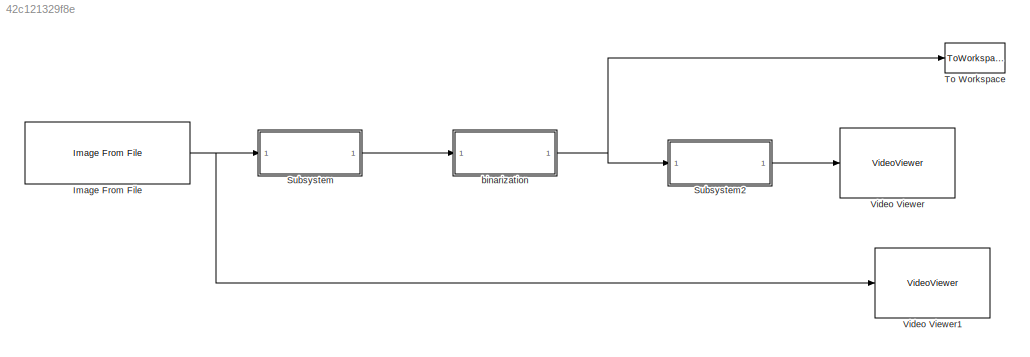
MODEL slx_42c121329f8e
KIND model
CONFIG AbsTol = auto
CONFIG EnableMultiTasking = off
CONFIG FixedStep = auto
CONFIG MaxStep = auto
CONFIG MinStep = auto
CONFIG RelTol = 1e-3
CONFIG SampleTimeConstraint = Unconstrained
CONFIG Solver = VariableStepAuto
CONFIG SolverName = VariableStepAuto
CONFIG StartTime = 0.0
CONFIG StopTime = 10.0
BLOCK [Reference] Image From File  REF=visionsources/Image From File
  Ports = [0, 1]
  SourceBlock = visionsources/Image From File
  SourceProductBaseCode = VP
  SourceProductName = Computer Vision System Toolbox
  SourceType = Image From File
  Tag = vipblks_nd
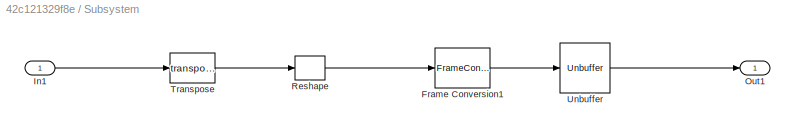
BLOCK [SubSystem] Subsystem
  Ports = [1, 1]
  RequestExecContextInheritance = off
BLOCK [FrameConversion] Subsystem/Frame Conversion1
  Ports = [1, 1]
BLOCK [Inport] Subsystem/In1
  IconDisplay = Port number
BLOCK [Outport] Subsystem/Out1
  IconDisplay = Port number
BLOCK [Reshape] Subsystem/Reshape
  Ports = [1, 1]
BLOCK [Math] Subsystem/Transpose
  Operator = transpose
  Ports = [1, 1]
  RndMeth = Zero
BLOCK [Unbuffer] Subsystem/Unbuffer
  Ports = [1, 1]
  ic = 1
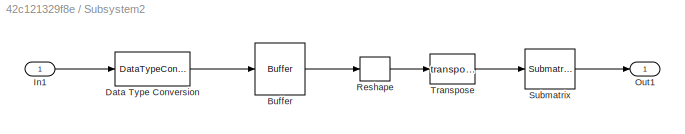
BLOCK [SubSystem] Subsystem2
  Ports = [1, 1]
  RequestExecContextInheritance = off
BLOCK [Buffer] Subsystem2/Buffer
  N = 65536
  OutputFrames = off
BLOCK [DataTypeConversion] Subsystem2/Data Type Conversion
  RndMeth = Floor
  SaturateOnIntegerOverflow = off
BLOCK [Inport] Subsystem2/In1
  IconDisplay = Port number
BLOCK [Outport] Subsystem2/Out1
  IconDisplay = Port number
BLOCK [Reshape] Subsystem2/Reshape
  OutputDimensionality = Customize
  OutputDimensions = [256,256]
  Ports = [1, 1]
BLOCK [Reference] Subsystem2/Submatrix  REF=dspmtrx3/Submatrix
  Ports = [1, 1]
  SourceBlock = dspmtrx3/Submatrix
  SourceProductBaseCode = DS
  SourceProductName = DSP System Toolbox
  SourceType = Submatrix
BLOCK [Math] Subsystem2/Transpose
  Operator = transpose
  Ports = [1, 1]
  RndMeth = Zero
BLOCK [ToWorkspace] To Workspace
  FixptAsFi = on
  MaxDataPoints = inf
  Ports = [1]
  SampleTime = -1
  Save2DSignal = 3-D array (concatenate along third dimension)
  VariableName = simout
BLOCK [VideoViewer] Video Viewer
  FigPos = [1042 1066 418 461]
  Ports = [1]
  ScopeSpecificationString = vipscopes.VideoViewerScopeCfg('CurrentConfiguration', extmgr.ConfigurationSet(extmgr.Configuration('Core','General UI',true),extmgr.Configuration('Core','Source UI',true),extmgr.Configuration('Sources','WiredSimulink',true),extmgr.Configuration('Visuals','Video',true),extmgr.Configuration('Tools','Image Navigation Tools',true),extmgr.Configuration('Tools','Image Tool',true),extmgr.Configuration('T...<+76ch>
BLOCK [VideoViewer] Video Viewer1
  FigPos = [184 1000 418 304]
  Ports = [1]
  ScopeSpecificationString = vipscopes.VideoViewerScopeCfg('CurrentConfiguration', extmgr.ConfigurationSet(extmgr.Configuration('Core','General UI',true),extmgr.Configuration('Core','Source UI',true),extmgr.Configuration('Sources','WiredSimulink',true),extmgr.Configuration('Visuals','Video',true),extmgr.Configuration('Tools','Image Navigation Tools',true),extmgr.Configuration('Tools','Image Tool',true),extmgr.Configuration('T...<+75ch>
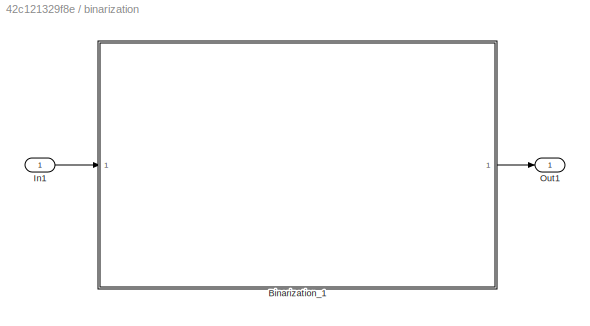
BLOCK [SubSystem] binarization
  Ports = [1, 1]
  RequestExecContextInheritance = off
  TreatAsAtomicUnit = on
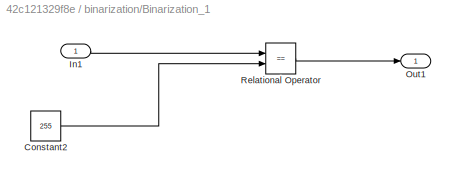
BLOCK [SubSystem] binarization/Binarization_1
  Ports = [1, 1]
  RequestExecContextInheritance = off
  TreatAsAtomicUnit = on
BLOCK [Constant] binarization/Binarization_1/Constant2
  OutDataTypeStr = fixdt(1,16)
  SampleTime = -1
  Value = 255
BLOCK [Inport] binarization/Binarization_1/In1
  IconDisplay = Port number
BLOCK [Outport] binarization/Binarization_1/Out1
  IconDisplay = Port number
BLOCK [RelationalOperator] binarization/Binarization_1/Relational Operator
  InputSameDT = off
  Operator = ==
  OutDataTypeStr = boolean
  Ports = [2, 1]
BLOCK [Inport] binarization/In1
  IconDisplay = Port number
BLOCK [Outport] binarization/Out1
  IconDisplay = Port number
NET Image From File:1 -> Subsystem:1, Video Viewer1:1
LINE Subsystem/Frame Conversion1:1 -> Subsystem/Unbuffer:1
LINE Subsystem/In1:1 -> Subsystem/Transpose:1
LINE Subsystem/Reshape:1 -> Subsystem/Frame Conversion1:1
LINE Subsystem/Transpose:1 -> Subsystem/Reshape:1
LINE Subsystem/Unbuffer:1 -> Subsystem/Out1:1
LINE Subsystem2/Buffer:1 -> Subsystem2/Reshape:1
LINE Subsystem2/Data Type Conversion:1 -> Subsystem2/Buffer:1
LINE Subsystem2/In1:1 -> Subsystem2/Data Type Conversion:1
LINE Subsystem2/Reshape:1 -> Subsystem2/Transpose:1
LINE Subsystem2/Submatrix:1 -> Subsystem2/Out1:1
LINE Subsystem2/Transpose:1 -> Subsystem2/Submatrix:1
LINE Subsystem2:1 -> Video Viewer:1
LINE Subsystem:1 -> binarization:1
LINE binarization/Binarization_1/Constant2:1 -> binarization/Binarization_1/Relational Operator:2
LINE binarization/Binarization_1/In1:1 -> binarization/Binarization_1/Relational Operator:1
LINE binarization/Binarization_1/Relational Operator:1 -> binarization/Binarization_1/Out1:1
LINE binarization/Binarization_1:1 -> binarization/Out1:1
LINE binarization/In1:1 -> binarization/Binarization_1:1
NET binarization:1 -> Subsystem2:1, To Workspace:1
note: NET lines group one-source signal fan-out (src -> all destinations, sorted); 1:1 wires keep LINE
